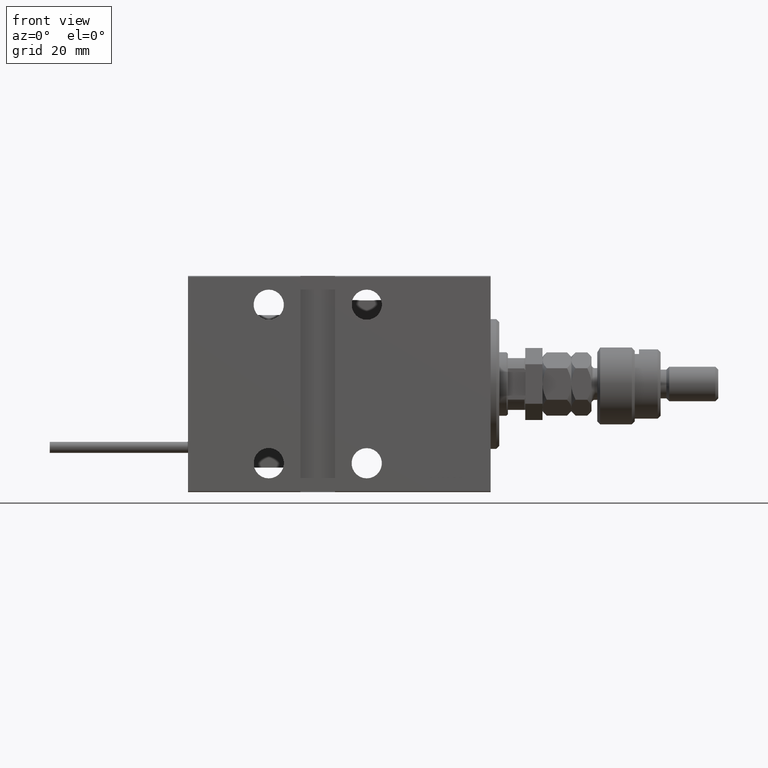
[diagram: clean part render]
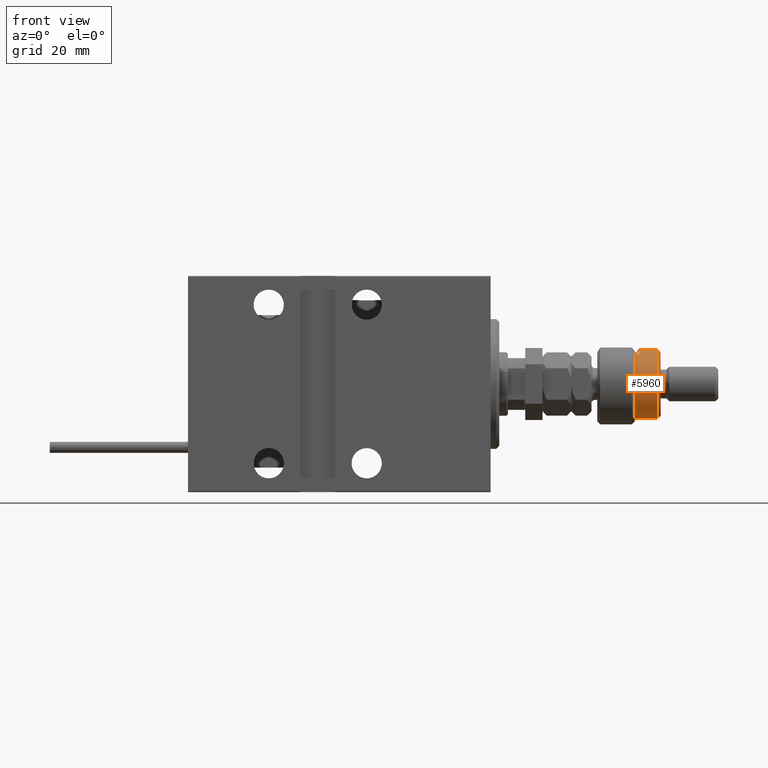
[diagram: same view with one face highlighted and labeled with its STEP entity id]
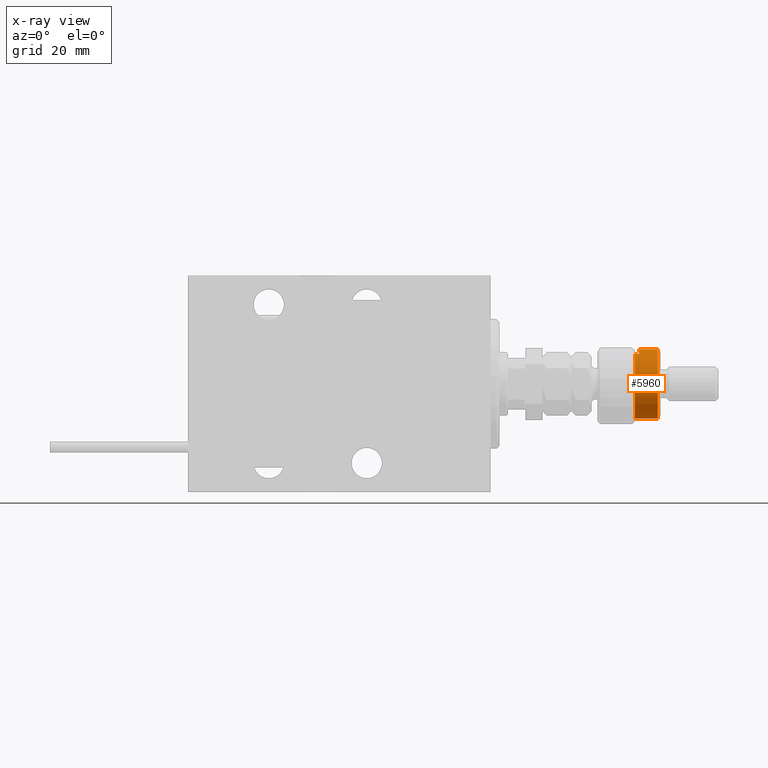
[diagram: x-ray of the same camera — body ghosted, the highlighted face saturated]
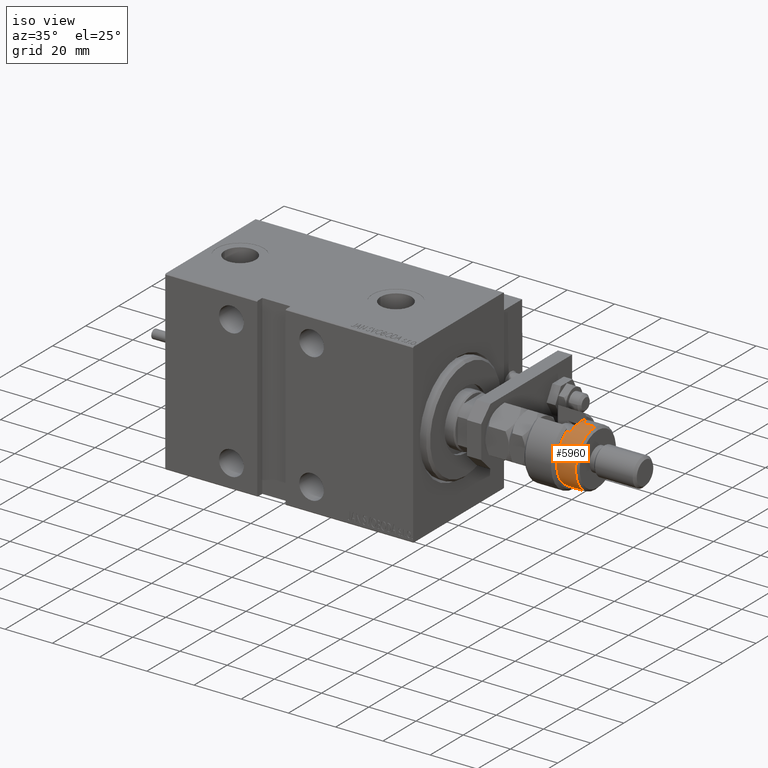
[diagram: same view with one face highlighted and labeled with its STEP entity id]
A machine part, front view. The second image highlights one B-rep face of the part: STEP entity #5960.
The next image is the same camera in x-ray: the body ghosted, the highlighted face saturated — about 0% of this face is hidden behind the body in this view.
A second angle (iso view) of the same face is appended — the face is thin or edge-on in the first view.
In plain terms, the highlighted cylindrical surface (edge-blend (fillet) strip) has radius 12 mm, axis along (-1, -0, 0).
Its self-contained STEP definition (entity closure, byte-faithful):
#774 = DIRECTION ( 'NONE',  ( -1.000000000000000000, 0.000000000000000000, 0.000000000000000000 ) ) ;
#836 = VERTEX_POINT ( 'NONE', #22392 ) ;
#2984 = CARTESIAN_POINT ( 'NONE',  ( -12.00000000000000178, 0.000000000000000000, 14.50000000000000000 ) ) ;
#3244 = LINE ( 'NONE', #11811, #16994 ) ;
#4302 = CARTESIAN_POINT ( 'NONE',  ( -10.39230484541326582, -5.999999999999998224, 14.50000000000000000 ) ) ;
#5529 = DIRECTION ( 'NONE',  ( 0.000000000000000000, 0.000000000000000000, -1.000000000000000000 ) ) ;
#5960 = ADVANCED_FACE ( 'NONE', ( #39965 ), #7818, .T. ) ;
#6069 = AXIS2_PLACEMENT_3D ( 'NONE', #47314, #23443, #31507 ) ;
#6485 = EDGE_CURVE ( 'NONE', #25438, #16111, #49433, .T. ) ;
#6577 = ORIENTED_EDGE ( 'NONE', *, *, #6485, .F. ) ;
#7590 = VERTEX_POINT ( 'NONE', #18836 ) ;
#7818 = CYLINDRICAL_SURFACE ( 'NONE', #41713, 12.00000000000000178 ) ;
#10317 = CARTESIAN_POINT ( 'NONE',  ( 0.000000000000000000, 0.000000000000000000, 20.99999999999998224 ) ) ;
#10928 = EDGE_LOOP ( 'NONE', ( #26090, #34918, #23640, #6577, #45107, #31490 ) ) ;
#11079 = VECTOR ( 'NONE', #20437, 1000.000000000000000 ) ;
#11811 = CARTESIAN_POINT ( 'NONE',  ( -12.00000000000000178, 0.000000000000000000, 22.00000000000000000 ) ) ;
#11958 = CIRCLE ( 'NONE', #32494, 12.00000000000000178 ) ;
#12369 = EDGE_CURVE ( 'NONE', #35125, #836, #34160, .T. ) ;
#12610 = DIRECTION ( 'NONE',  ( -0.000000000000000000, -0.000000000000000000, -1.000000000000000000 ) ) ;
#12831 = EDGE_CURVE ( 'NONE', #25438, #35125, #21215, .T. ) ;
#12931 = CARTESIAN_POINT ( 'NONE',  ( -10.39230484541326760, -6.000000000000000000, 22.00000000000000000 ) ) ;
#16111 = VERTEX_POINT ( 'NONE', #2984 ) ;
#16994 = VECTOR ( 'NONE', #35928, 1000.000000000000000 ) ;
#18836 = CARTESIAN_POINT ( 'NONE',  ( -12.00000000000000178, 0.000000000000000000, 20.99999999999998224 ) ) ;
#20112 = CARTESIAN_POINT ( 'NONE',  ( 0.000000000000000000, 0.000000000000000000, 22.00000000000000000 ) ) ;
#20437 = DIRECTION ( 'NONE',  ( -0.000000000000000000, -0.000000000000000000, -1.000000000000000000 ) ) ;
#21111 = CARTESIAN_POINT ( 'NONE',  ( 0.000000000000000000, 0.000000000000000000, 14.50000000000000000 ) ) ;
#21215 = LINE ( 'NONE', #12931, #40999 ) ;
#22369 = DIRECTION ( 'NONE',  ( 1.000000000000000000, 0.000000000000000000, 0.000000000000000000 ) ) ;
#22392 = CARTESIAN_POINT ( 'NONE',  ( 12.00000000000000178, 1.469576158976824144E-15, 13.00000000000000000 ) ) ;
#23443 = DIRECTION ( 'NONE',  ( 0.000000000000000000, 0.000000000000000000, 1.000000000000000000 ) ) ;
#23640 = ORIENTED_EDGE ( 'NONE', *, *, #31031, .T. ) ;
#24731 = LINE ( 'NONE', #45367, #11079 ) ;
#25438 = VERTEX_POINT ( 'NONE', #4302 ) ;
#26090 = ORIENTED_EDGE ( 'NONE', *, *, #33086, .F. ) ;
#28032 = VERTEX_POINT ( 'NONE', #49100 ) ;
#28904 = AXIS2_PLACEMENT_3D ( 'NONE', #21111, #37477, #774 ) ;
#29252 = DIRECTION ( 'NONE',  ( -0.000000000000000000, -0.000000000000000000, -1.000000000000000000 ) ) ;
#31031 = EDGE_CURVE ( 'NONE', #7590, #16111, #3244, .T. ) ;
#31490 = ORIENTED_EDGE ( 'NONE', *, *, #12369, .T. ) ;
#31507 = DIRECTION ( 'NONE',  ( 1.000000000000000000, 0.000000000000000000, 0.000000000000000000 ) ) ;
#32494 = AXIS2_PLACEMENT_3D ( 'NONE', #10317, #5529, #22369 ) ;
#32752 = EDGE_CURVE ( 'NONE', #28032, #7590, #11958, .T. ) ;
#33086 = EDGE_CURVE ( 'NONE', #28032, #836, #24731, .T. ) ;
#34160 = CIRCLE ( 'NONE', #6069, 12.00000000000000178 ) ;
#34918 = ORIENTED_EDGE ( 'NONE', *, *, #32752, .T. ) ;
#35125 = VERTEX_POINT ( 'NONE', #37903 ) ;
#35928 = DIRECTION ( 'NONE',  ( -0.000000000000000000, -0.000000000000000000, -1.000000000000000000 ) ) ;
#37477 = DIRECTION ( 'NONE',  ( 0.000000000000000000, 0.000000000000000000, -1.000000000000000000 ) ) ;
#37903 = CARTESIAN_POINT ( 'NONE',  ( -10.39230484541326760, -6.000000000000000000, 13.00000000000000000 ) ) ;
#39965 = FACE_OUTER_BOUND ( 'NONE', #10928, .T. ) ;
#40999 = VECTOR ( 'NONE', #29252, 1000.000000000000000 ) ;
#41713 = AXIS2_PLACEMENT_3D ( 'NONE', #20112, #12610, #42370 ) ;
#42370 = DIRECTION ( 'NONE',  ( -1.000000000000000000, 0.000000000000000000, 0.000000000000000000 ) ) ;
#45107 = ORIENTED_EDGE ( 'NONE', *, *, #12831, .T. ) ;
#45367 = CARTESIAN_POINT ( 'NONE',  ( 12.00000000000000178, 1.469576158976824144E-15, 22.00000000000000000 ) ) ;
#47314 = CARTESIAN_POINT ( 'NONE',  ( 0.000000000000000000, 0.000000000000000000, 13.00000000000000000 ) ) ;
#49100 = CARTESIAN_POINT ( 'NONE',  ( 12.00000000000000178, 1.469576158976824144E-15, 20.99999999999998224 ) ) ;
#49433 = CIRCLE ( 'NONE', #28904, 12.00000000000000178 ) ;